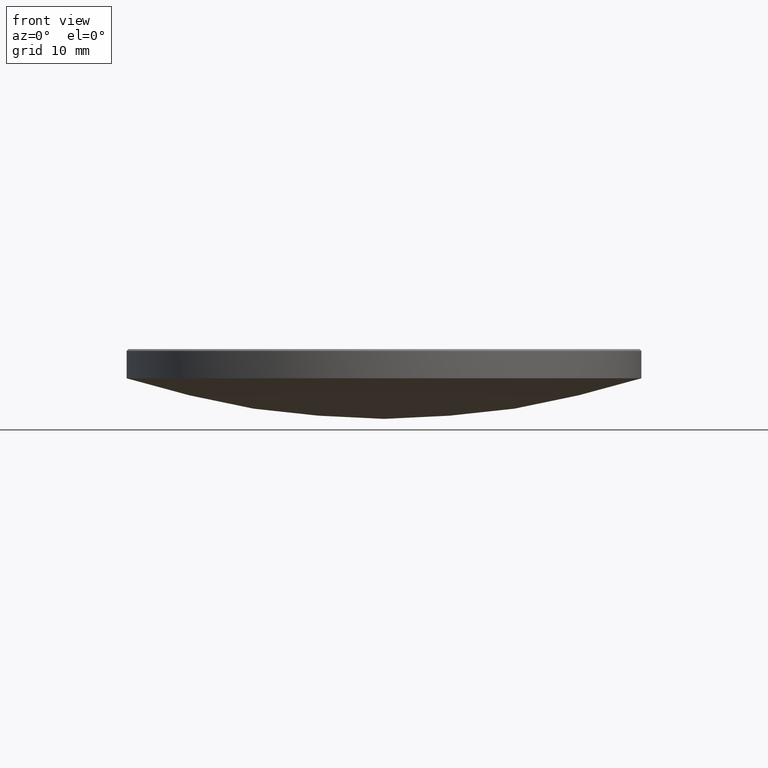
[diagram: clean part render]
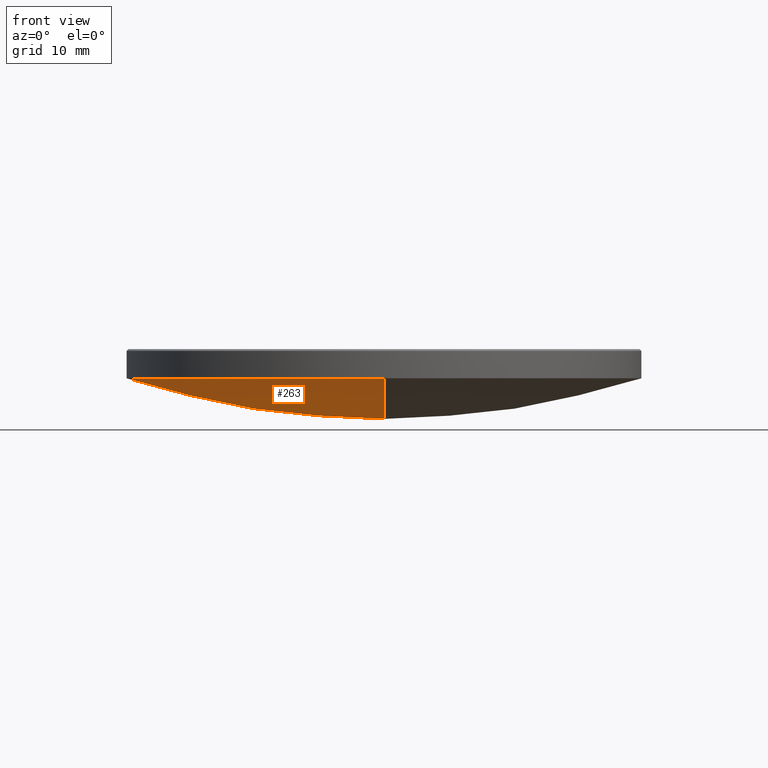
[diagram: same view with one face highlighted and labeled with its STEP entity id]
A machine part, front view. The second image highlights one B-rep face of the part: STEP entity #263.
In plain terms, the highlighted spherical surface has radius 82.54 mm.
Its self-contained STEP definition (entity closure, byte-faithful):
#2 = ORIENTED_EDGE ( 'NONE', *, *, #82, .F. ) ;
#4 = AXIS2_PLACEMENT_3D ( 'NONE', #185, #142, #99 ) ;
#13 = FACE_OUTER_BOUND ( 'NONE', #244, .T. ) ;
#20 = DIRECTION ( 'NONE',  ( 1.000000000000000000, -0.000000000000000000, 0.000000000000000000 ) ) ;
#38 = CARTESIAN_POINT ( 'NONE',  ( 0.000000000000000000, 0.000000000000000000, 13.00000000000000000 ) ) ;
#39 = DIRECTION ( 'NONE',  ( 1.000000000000000000, 0.000000000000000000, 0.000000000000000000 ) ) ;
#45 = ORIENTED_EDGE ( 'NONE', *, *, #241, .F. ) ;
#53 = CARTESIAN_POINT ( 'NONE',  ( -25.39999999999999503, 0.000000000000000000, 13.00000000000000000 ) ) ;
#61 = CIRCLE ( 'NONE', #93, 82.54000000000000625 ) ;
#64 = EDGE_CURVE ( 'NONE', #221, #270, #87, .T. ) ;
#82 = EDGE_CURVE ( 'NONE', #129, #270, #204, .T. ) ;
#87 = CIRCLE ( 'NONE', #4, 82.54000000000000625 ) ;
#93 = AXIS2_PLACEMENT_3D ( 'NONE', #128, #20, #260 ) ;
#99 = DIRECTION ( 'NONE',  ( -1.224646799147352961E-16, -1.000000000000000000, 0.000000000000000000 ) ) ;
#107 = ORIENTED_EDGE ( 'NONE', *, *, #257, .F. ) ;
#114 = CIRCLE ( 'NONE', #278, 25.39999999999999503 ) ;
#117 = DIRECTION ( 'NONE',  ( -1.000000000000000000, 0.000000000000000000, 0.000000000000000000 ) ) ;
#119 = CARTESIAN_POINT ( 'NONE',  ( 0.000000000000000000, 25.39999999999999147, 12.99999999999999822 ) ) ;
#124 = DIRECTION ( 'NONE',  ( 0.000000000000000000, 1.000000000000000000, 0.000000000000000000 ) ) ;
#125 = AXIS2_PLACEMENT_3D ( 'NONE', #168, #212, #158 ) ;
#128 = CARTESIAN_POINT ( 'NONE',  ( 0.000000000000000000, 0.000000000000000000, 91.53465222435252713 ) ) ;
#129 = VERTEX_POINT ( 'NONE', #53 ) ;
#138 = AXIS2_PLACEMENT_3D ( 'NONE', #273, #117, #124 ) ;
#142 = DIRECTION ( 'NONE',  ( -1.000000000000000000, 1.224646799147353207E-16, 0.000000000000000000 ) ) ;
#158 = DIRECTION ( 'NONE',  ( 1.000000000000000000, 0.000000000000000000, 0.000000000000000000 ) ) ;
#168 = CARTESIAN_POINT ( 'NONE',  ( 0.000000000000000000, 0.000000000000000000, 13.00000000000000000 ) ) ;
#185 = CARTESIAN_POINT ( 'NONE',  ( 0.000000000000000000, 0.000000000000000000, 91.53465222435252713 ) ) ;
#190 = CARTESIAN_POINT ( 'NONE',  ( -3.110602869834276076E-15, -25.39999999999999147, 12.99999999999999822 ) ) ;
#204 = CIRCLE ( 'NONE', #125, 25.39999999999999503 ) ;
#212 = DIRECTION ( 'NONE',  ( -0.000000000000000000, -0.000000000000000000, 1.000000000000000000 ) ) ;
#221 = VERTEX_POINT ( 'NONE', #258 ) ;
#241 = EDGE_CURVE ( 'NONE', #221, #269, #61, .T. ) ;
#244 = EDGE_LOOP ( 'NONE', ( #45, #267, #2, #107 ) ) ;
#255 = SPHERICAL_SURFACE ( 'NONE', #138, 82.54000000000000625 ) ;
#257 = EDGE_CURVE ( 'NONE', #269, #129, #114, .T. ) ;
#258 = CARTESIAN_POINT ( 'NONE',  ( 0.000000000000000000, 5.054117340081126317E-15, 8.994652224352527980 ) ) ;
#260 = DIRECTION ( 'NONE',  ( 0.000000000000000000, 0.000000000000000000, -1.000000000000000000 ) ) ;
#263 = ADVANCED_FACE ( 'NONE', ( #13 ), #255, .T. ) ;
#267 = ORIENTED_EDGE ( 'NONE', *, *, #64, .T. ) ;
#269 = VERTEX_POINT ( 'NONE', #119 ) ;
#270 = VERTEX_POINT ( 'NONE', #190 ) ;
#273 = CARTESIAN_POINT ( 'NONE',  ( 0.000000000000000000, 0.000000000000000000, 91.53465222435252713 ) ) ;
#278 = AXIS2_PLACEMENT_3D ( 'NONE', #38, #279, #39 ) ;
#279 = DIRECTION ( 'NONE',  ( -0.000000000000000000, -0.000000000000000000, 1.000000000000000000 ) ) ;